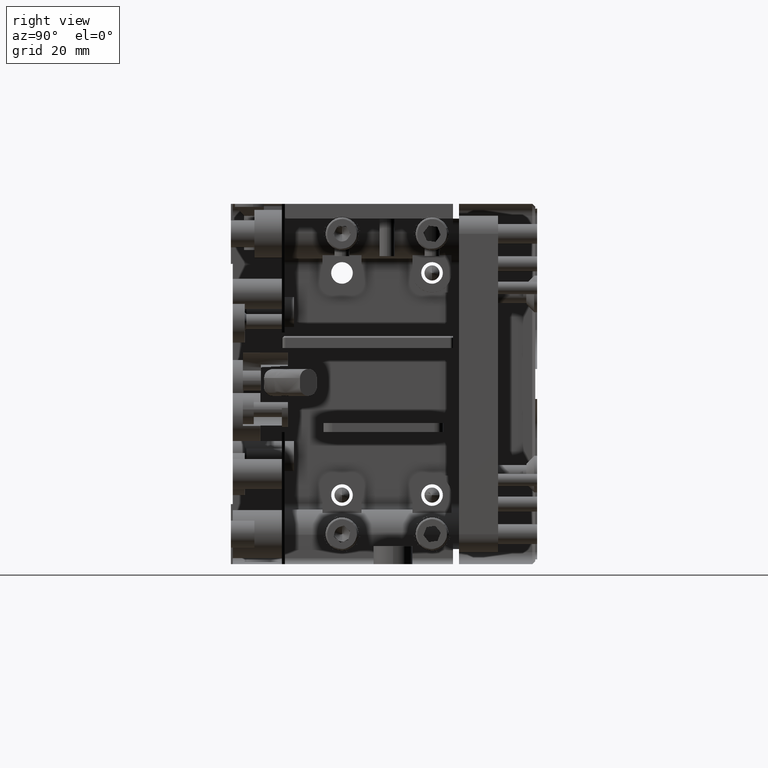
[diagram: clean part render]
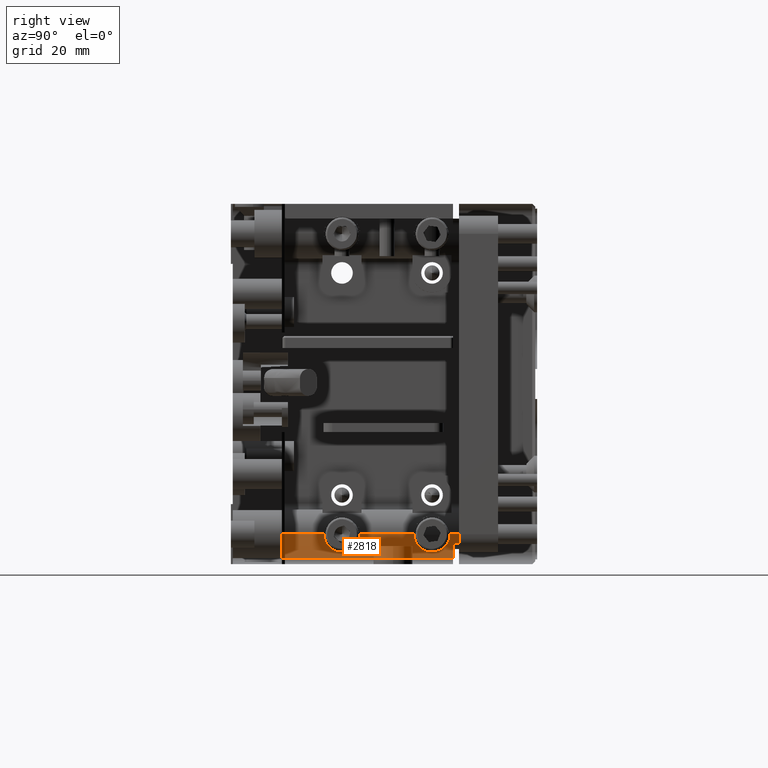
[diagram: same view with one face highlighted and labeled with its STEP entity id]
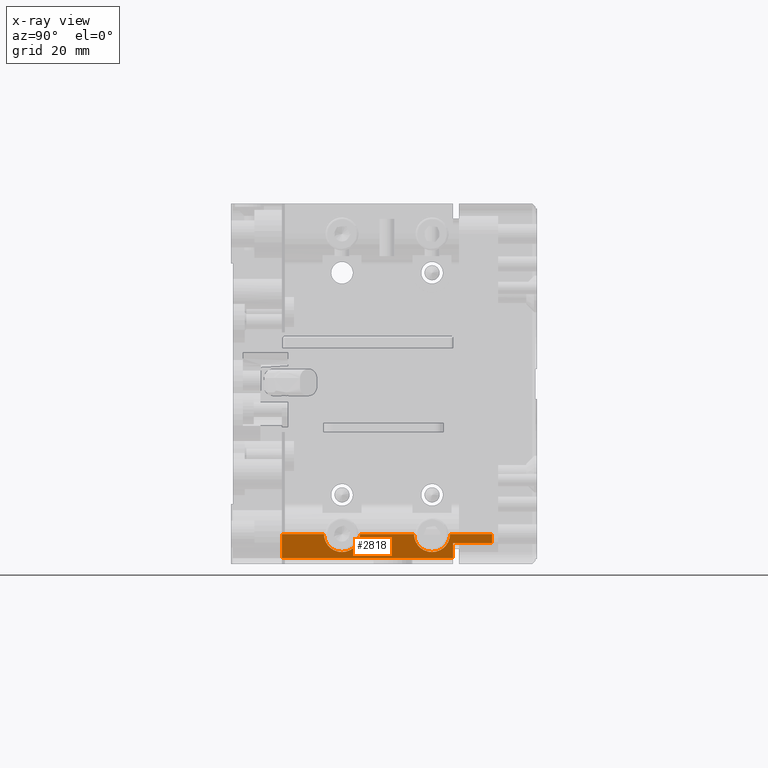
[diagram: x-ray of the same camera — body ghosted, the highlighted face saturated]
A machine part, right view. The second image highlights one B-rep face of the part: STEP entity #2818.
The next image is the same camera in x-ray: the body ghosted, the highlighted face saturated — about 0% of this face is hidden behind the body in this view.
In plain terms, the highlighted planar face has unit normal (-1, -0, 0).
Its self-contained STEP definition (entity closure, byte-faithful):
#23 = LINE ( 'NONE', #6983, #23263 ) ;
#301 = CARTESIAN_POINT ( 'NONE',  ( 19.99999999999999289, 8.500000000000000000, -25.00000000000000000 ) ) ;
#565 = EDGE_CURVE ( 'NONE', #9766, #12823, #27085, .T. ) ;
#567 = VERTEX_POINT ( 'NONE', #23554 ) ;
#682 = DIRECTION ( 'NONE',  ( 0.000000000000000000, 0.000000000000000000, -1.000000000000000000 ) ) ;
#840 = VERTEX_POINT ( 'NONE', #26606 ) ;
#1818 = VERTEX_POINT ( 'NONE', #301 ) ;
#2425 = AXIS2_PLACEMENT_3D ( 'NONE', #22934, #8854, #17894 ) ;
#2818 = ADVANCED_FACE ( 'NONE', ( #20168 ), #6089, .T. ) ;
#2940 = VECTOR ( 'NONE', #16816, 1000.000000000000000 ) ;
#3363 = VERTEX_POINT ( 'NONE', #8691 ) ;
#3714 = CARTESIAN_POINT ( 'NONE',  ( 19.99999999999998934, 15.50000000000000355, -25.00000000000000000 ) ) ;
#4784 = VECTOR ( 'NONE', #25721, 1000.000000000000000 ) ;
#5484 = CARTESIAN_POINT ( 'NONE',  ( 19.99999999999998934, 36.50000000000000000, -24.99999999999999289 ) ) ;
#5579 = LINE ( 'NONE', #14905, #28035 ) ;
#5834 = EDGE_CURVE ( 'NONE', #1818, #26310, #15467, .T. ) ;
#6089 = PLANE ( 'NONE',  #18662 ) ;
#6552 = ORIENTED_EDGE ( 'NONE', *, *, #13439, .T. ) ;
#6983 = CARTESIAN_POINT ( 'NONE',  ( 19.99999999999998934, 43.50000000000001421, -24.99999999999999289 ) ) ;
#7489 = CARTESIAN_POINT ( 'NONE',  ( 19.99999999999998934, 43.50000000000001421, -26.49999999999999645 ) ) ;
#7619 = CARTESIAN_POINT ( 'NONE',  ( 19.99999999999998934, 43.50000000000001421, -25.00000000000000000 ) ) ;
#8146 = VERTEX_POINT ( 'NONE', #13780 ) ;
#8691 = CARTESIAN_POINT ( 'NONE',  ( 19.99999999999998934, 43.50000000000001421, -24.99999999999999289 ) ) ;
#8854 = DIRECTION ( 'NONE',  ( 1.000000000000000000, 0.000000000000000000, 0.000000000000000000 ) ) ;
#9051 = ORIENTED_EDGE ( 'NONE', *, *, #25678, .T. ) ;
#9077 = DIRECTION ( 'NONE',  ( 6.736790197968174969E-17, -1.000000000000000000, 0.000000000000000000 ) ) ;
#9187 = ORIENTED_EDGE ( 'NONE', *, *, #565, .T. ) ;
#9618 = VECTOR ( 'NONE', #24650, 1000.000000000000000 ) ;
#9766 = VERTEX_POINT ( 'NONE', #18466 ) ;
#9993 = CARTESIAN_POINT ( 'NONE',  ( 19.99999999999999289, 8.500000000000000000, -28.99999999999999645 ) ) ;
#10069 = DIRECTION ( 'NONE',  ( 1.000000000000000000, 0.000000000000000000, 0.000000000000000000 ) ) ;
#10125 = DIRECTION ( 'NONE',  ( -0.000000000000000000, -0.000000000000000000, -1.000000000000000000 ) ) ;
#10867 = ORIENTED_EDGE ( 'NONE', *, *, #15844, .T. ) ;
#10888 = VECTOR ( 'NONE', #27823, 1000.000000000000000 ) ;
#11999 = ORIENTED_EDGE ( 'NONE', *, *, #17963, .T. ) ;
#12051 = EDGE_CURVE ( 'NONE', #23813, #19608, #19033, .T. ) ;
#12141 = DIRECTION ( 'NONE',  ( 0.000000000000000000, 0.000000000000000000, -1.000000000000000000 ) ) ;
#12251 = CARTESIAN_POINT ( 'NONE',  ( 19.99999999999998934, 43.50000000000001421, -24.99999999999999289 ) ) ;
#12437 = CARTESIAN_POINT ( 'NONE',  ( 19.99999999999998934, 33.50000000000000000, -24.99999999999999289 ) ) ;
#12823 = VERTEX_POINT ( 'NONE', #5484 ) ;
#12905 = CARTESIAN_POINT ( 'NONE',  ( 19.99999999999998934, 43.50000000000001421, -30.00000000000000000 ) ) ;
#13318 = VERTEX_POINT ( 'NONE', #3714 ) ;
#13439 = EDGE_CURVE ( 'NONE', #1818, #13318, #14568, .T. ) ;
#13780 = CARTESIAN_POINT ( 'NONE',  ( 19.99999999999999289, 18.50000000000000000, -27.99999999999998934 ) ) ;
#13846 = AXIS2_PLACEMENT_3D ( 'NONE', #16239, #23345, #682 ) ;
#14312 = VECTOR ( 'NONE', #10125, 1000.000000000000000 ) ;
#14568 = LINE ( 'NONE', #7619, #2940 ) ;
#14609 = DIRECTION ( 'NONE',  ( -0.000000000000000000, -0.000000000000000000, -1.000000000000000000 ) ) ;
#14905 = CARTESIAN_POINT ( 'NONE',  ( 19.99999999999998934, 43.50000000000001421, -30.00000000000000000 ) ) ;
#15414 = CARTESIAN_POINT ( 'NONE',  ( 19.99999999999998934, 21.49999999999999645, -24.99999999999999289 ) ) ;
#15467 = LINE ( 'NONE', #22434, #9618 ) ;
#15554 = DIRECTION ( 'NONE',  ( 6.736790197968174969E-17, -1.000000000000000000, 0.000000000000000000 ) ) ;
#15561 = DIRECTION ( 'NONE',  ( 0.000000000000000000, 0.000000000000000000, -1.000000000000000000 ) ) ;
#15844 = EDGE_CURVE ( 'NONE', #13318, #8146, #16221, .T. ) ;
#16084 = LINE ( 'NONE', #7489, #4784 ) ;
#16221 = CIRCLE ( 'NONE', #13846, 2.999999999999995559 ) ;
#16239 = CARTESIAN_POINT ( 'NONE',  ( 19.99999999999999289, 18.50000000000000000, -24.99999999999999289 ) ) ;
#16816 = DIRECTION ( 'NONE',  ( -6.736790197968174969E-17, 1.000000000000000000, -0.000000000000000000 ) ) ;
#17126 = VECTOR ( 'NONE', #9077, 1000.000000000000000 ) ;
#17387 = ORIENTED_EDGE ( 'NONE', *, *, #18776, .T. ) ;
#17521 = CARTESIAN_POINT ( 'NONE',  ( 19.99999999999998934, 37.00000000000000711, -28.99999999999999645 ) ) ;
#17894 = DIRECTION ( 'NONE',  ( 0.000000000000000000, 0.000000000000000000, -1.000000000000000000 ) ) ;
#17911 = CIRCLE ( 'NONE', #25483, 2.999999999999995559 ) ;
#17963 = EDGE_CURVE ( 'NONE', #840, #23813, #16084, .T. ) ;
#17984 = ORIENTED_EDGE ( 'NONE', *, *, #18337, .T. ) ;
#18337 = EDGE_CURVE ( 'NONE', #22369, #567, #23, .T. ) ;
#18466 = CARTESIAN_POINT ( 'NONE',  ( 19.99999999999998934, 33.50000000000000000, -27.99999999999998934 ) ) ;
#18662 = AXIS2_PLACEMENT_3D ( 'NONE', #12905, #24598, #15554 ) ;
#18776 = EDGE_CURVE ( 'NONE', #12823, #3363, #22796, .T. ) ;
#19033 = LINE ( 'NONE', #23334, #14312 ) ;
#19608 = VERTEX_POINT ( 'NONE', #17521 ) ;
#19993 = EDGE_CURVE ( 'NONE', #567, #9766, #21345, .T. ) ;
#20168 = FACE_OUTER_BOUND ( 'NONE', #24574, .T. ) ;
#20195 = LINE ( 'NONE', #26723, #17126 ) ;
#20788 = EDGE_CURVE ( 'NONE', #19608, #26310, #20195, .T. ) ;
#21345 = CIRCLE ( 'NONE', #2425, 2.999999999999995559 ) ;
#21667 = ORIENTED_EDGE ( 'NONE', *, *, #20788, .T. ) ;
#22090 = DIRECTION ( 'NONE',  ( 1.000000000000000000, 0.000000000000000000, 0.000000000000000000 ) ) ;
#22329 = AXIS2_PLACEMENT_3D ( 'NONE', #12437, #10069, #12141 ) ;
#22369 = VERTEX_POINT ( 'NONE', #15414 ) ;
#22434 = CARTESIAN_POINT ( 'NONE',  ( 19.99999999999999289, 8.499999999999998224, 68.36756780218743756 ) ) ;
#22796 = LINE ( 'NONE', #12251, #10888 ) ;
#22934 = CARTESIAN_POINT ( 'NONE',  ( 19.99999999999998934, 33.50000000000000000, -24.99999999999999289 ) ) ;
#23132 = ORIENTED_EDGE ( 'NONE', *, *, #5834, .F. ) ;
#23263 = VECTOR ( 'NONE', #24913, 1000.000000000000000 ) ;
#23334 = CARTESIAN_POINT ( 'NONE',  ( 19.99999999999998934, 37.00000000000000711, -30.00000000000000000 ) ) ;
#23345 = DIRECTION ( 'NONE',  ( 1.000000000000000000, 0.000000000000000000, 0.000000000000000000 ) ) ;
#23554 = CARTESIAN_POINT ( 'NONE',  ( 19.99999999999998934, 30.50000000000000711, -24.99999999999999645 ) ) ;
#23726 = EDGE_CURVE ( 'NONE', #3363, #840, #5579, .T. ) ;
#23813 = VERTEX_POINT ( 'NONE', #25589 ) ;
#24339 = CARTESIAN_POINT ( 'NONE',  ( 19.99999999999999289, 18.50000000000000000, -24.99999999999999289 ) ) ;
#24574 = EDGE_LOOP ( 'NONE', ( #11999, #27971, #21667, #23132, #6552, #10867, #9051, #17984, #24615, #9187, #17387, #27801 ) ) ;
#24598 = DIRECTION ( 'NONE',  ( -1.000000000000000000, -6.736790197968174969E-17, 0.000000000000000000 ) ) ;
#24615 = ORIENTED_EDGE ( 'NONE', *, *, #19993, .T. ) ;
#24650 = DIRECTION ( 'NONE',  ( -0.000000000000000000, 0.000000000000000000, -1.000000000000000000 ) ) ;
#24913 = DIRECTION ( 'NONE',  ( -6.736790197968174969E-17, 1.000000000000000000, -0.000000000000000000 ) ) ;
#25483 = AXIS2_PLACEMENT_3D ( 'NONE', #24339, #22090, #15561 ) ;
#25589 = CARTESIAN_POINT ( 'NONE',  ( 19.99999999999998934, 37.00000000000000711, -26.49999999999999645 ) ) ;
#25678 = EDGE_CURVE ( 'NONE', #8146, #22369, #17911, .T. ) ;
#25721 = DIRECTION ( 'NONE',  ( 6.736790197968174969E-17, -1.000000000000000000, 0.000000000000000000 ) ) ;
#26310 = VERTEX_POINT ( 'NONE', #9993 ) ;
#26606 = CARTESIAN_POINT ( 'NONE',  ( 19.99999999999998934, 43.50000000000001421, -26.49999999999999645 ) ) ;
#26723 = CARTESIAN_POINT ( 'NONE',  ( 19.99999999999998934, 43.50000000000001421, -28.99999999999999645 ) ) ;
#27085 = CIRCLE ( 'NONE', #22329, 2.999999999999995559 ) ;
#27801 = ORIENTED_EDGE ( 'NONE', *, *, #23726, .T. ) ;
#27823 = DIRECTION ( 'NONE',  ( -6.736790197968174969E-17, 1.000000000000000000, -0.000000000000000000 ) ) ;
#27971 = ORIENTED_EDGE ( 'NONE', *, *, #12051, .T. ) ;
#28035 = VECTOR ( 'NONE', #14609, 1000.000000000000000 ) ;